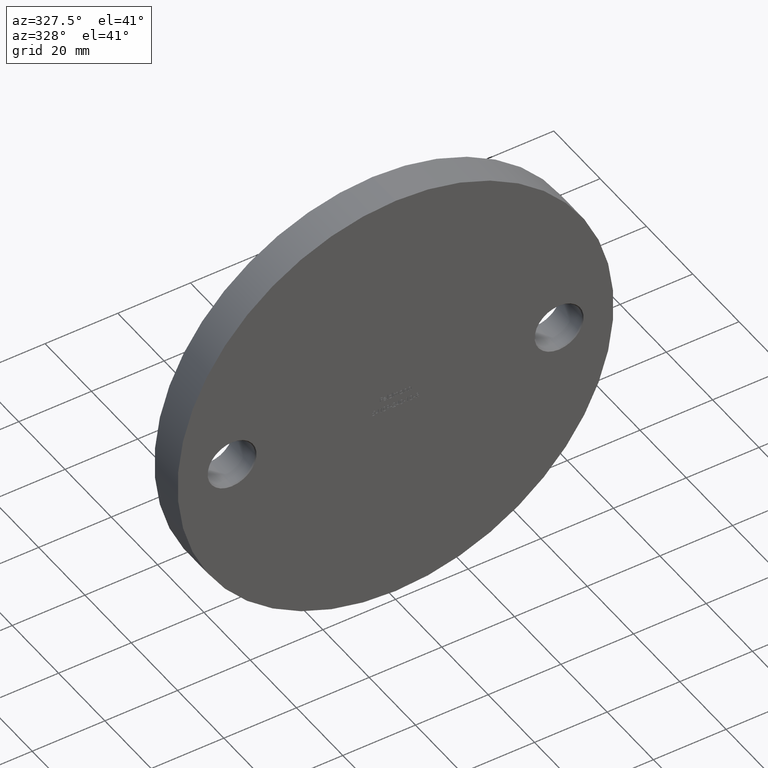
[diagram: clean part render]
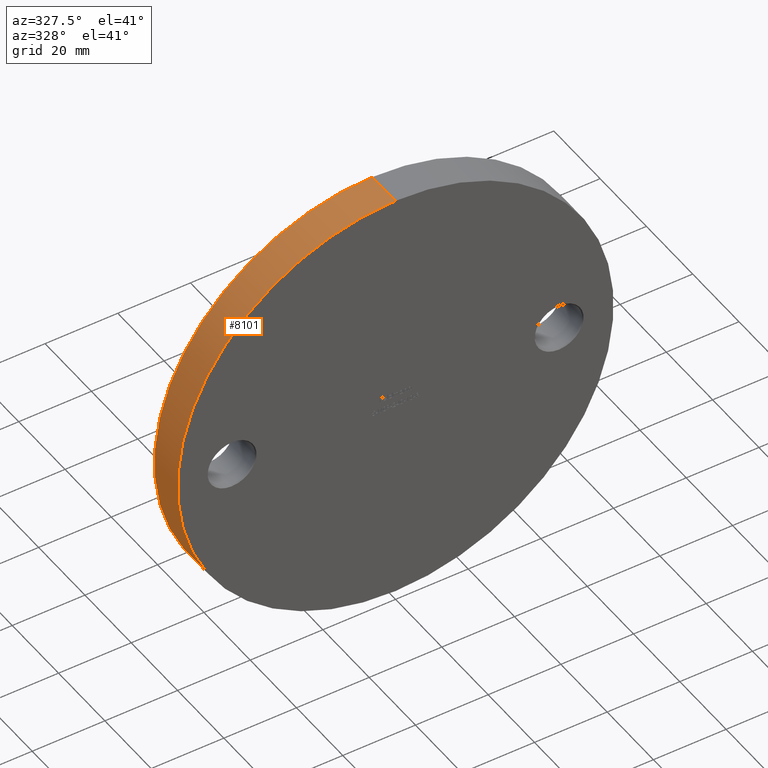
[diagram: same view with one face highlighted and labeled with its STEP entity id]
A machine part, auxiliary view. The second image highlights one B-rep face of the part: STEP entity #8101.
In plain terms, the highlighted cylindrical surface (partial cylindrical patch) has radius 60 mm, axis along (-0, -1, -0).
Its self-contained STEP definition (entity closure, byte-faithful):
#899 = AXIS2_PLACEMENT_3D ( 'NONE', #7156, #4918, #9409 ) ;
#1386 = ORIENTED_EDGE ( 'NONE', *, *, #8692, .F. ) ;
#1558 = DIRECTION ( 'NONE',  ( 0.000000000000000000, 0.000000000000000000, 1.000000000000000000 ) ) ;
#1697 = CARTESIAN_POINT ( 'NONE',  ( 0.000000000000000000, 10.00000000000000000, 0.000000000000000000 ) ) ;
#4268 = DIRECTION ( 'NONE',  ( -0.000000000000000000, -1.000000000000000000, -0.000000000000000000 ) ) ;
#4294 = CYLINDRICAL_SURFACE ( 'NONE', #9135, 60.00000000000000000 ) ;
#4918 = DIRECTION ( 'NONE',  ( 0.000000000000000000, 1.000000000000000000, 0.000000000000000000 ) ) ;
#5407 = VECTOR ( 'NONE', #9180, 1000.000000000000000 ) ;
#5664 = CARTESIAN_POINT ( 'NONE',  ( 7.347880794884118356E-15, 10.00000000000000000, 60.00000000000000000 ) ) ;
#6470 = EDGE_CURVE ( 'NONE', #7151, #7417, #6477, .T. ) ;
#6477 = LINE ( 'NONE', #14412, #8592 ) ;
#6703 = VERTEX_POINT ( 'NONE', #11752 ) ;
#7071 = DIRECTION ( 'NONE',  ( -0.000000000000000000, -1.000000000000000000, -0.000000000000000000 ) ) ;
#7103 = CARTESIAN_POINT ( 'NONE',  ( 0.000000000000000000, 10.00000000000000000, -60.00000000000000000 ) ) ;
#7146 = LINE ( 'NONE', #5664, #5407 ) ;
#7151 = VERTEX_POINT ( 'NONE', #7103 ) ;
#7156 = CARTESIAN_POINT ( 'NONE',  ( 0.000000000000000000, 0.000000000000000000, 0.000000000000000000 ) ) ;
#7417 = VERTEX_POINT ( 'NONE', #10836 ) ;
#7486 = VERTEX_POINT ( 'NONE', #11035 ) ;
#7566 = ORIENTED_EDGE ( 'NONE', *, *, #6470, .T. ) ;
#7984 = EDGE_CURVE ( 'NONE', #6703, #7486, #7146, .T. ) ;
#8101 = ADVANCED_FACE ( 'NONE', ( #13337 ), #4294, .T. ) ;
#8246 = DIRECTION ( 'NONE',  ( 0.000000000000000000, 0.000000000000000000, -1.000000000000000000 ) ) ;
#8592 = VECTOR ( 'NONE', #4268, 1000.000000000000000 ) ;
#8692 = EDGE_CURVE ( 'NONE', #7151, #6703, #13675, .T. ) ;
#9135 = AXIS2_PLACEMENT_3D ( 'NONE', #10418, #7071, #8246 ) ;
#9180 = DIRECTION ( 'NONE',  ( -0.000000000000000000, -1.000000000000000000, -0.000000000000000000 ) ) ;
#9409 = DIRECTION ( 'NONE',  ( 0.000000000000000000, 0.000000000000000000, 1.000000000000000000 ) ) ;
#10418 = CARTESIAN_POINT ( 'NONE',  ( 0.000000000000000000, 10.00000000000000000, 0.000000000000000000 ) ) ;
#10836 = CARTESIAN_POINT ( 'NONE',  ( 0.000000000000000000, 0.000000000000000000, -60.00000000000000000 ) ) ;
#11035 = CARTESIAN_POINT ( 'NONE',  ( 7.347880794884118356E-15, 0.000000000000000000, 60.00000000000000000 ) ) ;
#11412 = AXIS2_PLACEMENT_3D ( 'NONE', #1697, #14121, #1558 ) ;
#11638 = EDGE_CURVE ( 'NONE', #7417, #7486, #13091, .T. ) ;
#11752 = CARTESIAN_POINT ( 'NONE',  ( 7.347880794884118356E-15, 10.00000000000000000, 60.00000000000000000 ) ) ;
#11888 = ORIENTED_EDGE ( 'NONE', *, *, #7984, .F. ) ;
#13091 = CIRCLE ( 'NONE', #899, 60.00000000000000000 ) ;
#13277 = EDGE_LOOP ( 'NONE', ( #11888, #1386, #7566, #14266 ) ) ;
#13337 = FACE_OUTER_BOUND ( 'NONE', #13277, .T. ) ;
#13675 = CIRCLE ( 'NONE', #11412, 60.00000000000000000 ) ;
#14121 = DIRECTION ( 'NONE',  ( 0.000000000000000000, 1.000000000000000000, 0.000000000000000000 ) ) ;
#14266 = ORIENTED_EDGE ( 'NONE', *, *, #11638, .T. ) ;
#14412 = CARTESIAN_POINT ( 'NONE',  ( 0.000000000000000000, 10.00000000000000000, -60.00000000000000000 ) ) ;